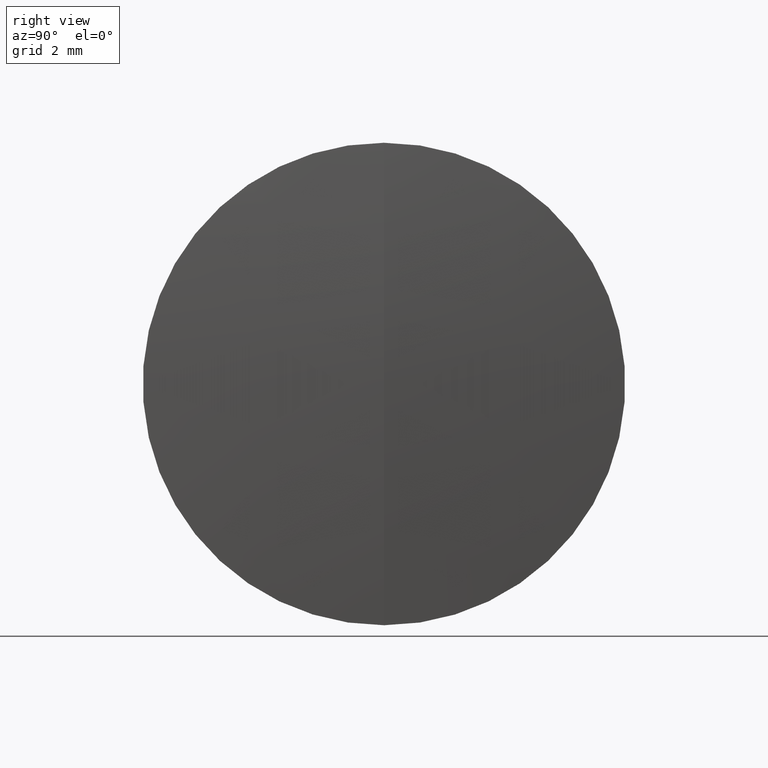
[diagram: clean part render]
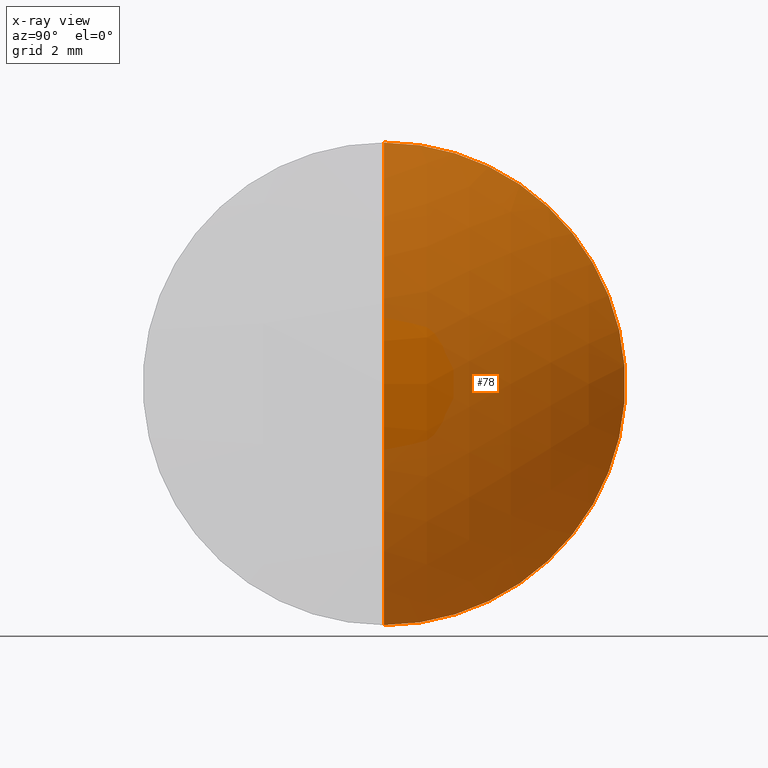
[diagram: x-ray — body ghosted, one internal face saturated and labeled with its STEP entity id]
A machine part, right view, then the same camera in x-ray: the body is ghosted and one INTERNAL B-rep face — a face not visible from any outside direction — is saturated and labeled: STEP entity #78.
In plain terms, the highlighted spherical surface has radius 10.6 mm.
Its self-contained STEP definition (entity closure, byte-faithful):
#7 = VERTEX_POINT ( 'NONE', #32 ) ;
#11 = EDGE_CURVE ( 'NONE', #58, #106, #141, .T. ) ;
#15 = ORIENTED_EDGE ( 'NONE', *, *, #333, .T. ) ;
#23 = DIRECTION ( 'NONE',  ( -1.000000000000000000, -0.0000000000000000000, -0.0000000000000000000 ) ) ;
#26 = SPHERICAL_SURFACE ( 'NONE', #287, 10.60000000000000500 ) ;
#32 = CARTESIAN_POINT ( 'NONE',  ( -0.6346800517470357900, 7.776507174585692200E-016, -6.349999999999999600 ) ) ;
#45 = DIRECTION ( 'NONE',  ( 0.0000000000000000000, 0.0000000000000000000, 1.000000000000000000 ) ) ;
#57 = EDGE_LOOP ( 'NONE', ( #337, #15, #268 ) ) ;
#58 = VERTEX_POINT ( 'NONE', #237 ) ;
#60 = CIRCLE ( 'NONE', #90, 6.349999999999999600 ) ;
#61 = CARTESIAN_POINT ( 'NONE',  ( -9.122170847029236600, 0.0000000000000000000, 0.0000000000000000000 ) ) ;
#74 = DIRECTION ( 'NONE',  ( -0.0000000000000000000, 1.000000000000000000, 1.224646799147353200E-016 ) ) ;
#78 = ADVANCED_FACE ( 'NONE', ( #170 ), #26, .T. ) ;
#90 = AXIS2_PLACEMENT_3D ( 'NONE', #295, #23, #45 ) ;
#92 = DIRECTION ( 'NONE',  ( 0.0000000000000000000, -1.000000000000000000, 0.0000000000000000000 ) ) ;
#106 = VERTEX_POINT ( 'NONE', #338 ) ;
#119 = EDGE_CURVE ( 'NONE', #106, #7, #60, .T. ) ;
#141 = CIRCLE ( 'NONE', #323, 10.60000000000000500 ) ;
#162 = AXIS2_PLACEMENT_3D ( 'NONE', #345, #74, #260 ) ;
#163 = CARTESIAN_POINT ( 'NONE',  ( -9.122170847029236600, 0.0000000000000000000, 0.0000000000000000000 ) ) ;
#170 = FACE_OUTER_BOUND ( 'NONE', #57, .T. ) ;
#180 = DIRECTION ( 'NONE',  ( 0.0000000000000000000, 0.0000000000000000000, -1.000000000000000000 ) ) ;
#186 = DIRECTION ( 'NONE',  ( 0.0000000000000000000, 1.000000000000000000, 0.0000000000000000000 ) ) ;
#194 = CIRCLE ( 'NONE', #162, 10.60000000000000500 ) ;
#237 = CARTESIAN_POINT ( 'NONE',  ( 1.477829152970767900, 0.0000000000000000000, 6.490628035480974900E-016 ) ) ;
#240 = DIRECTION ( 'NONE',  ( 0.0000000000000000000, 0.0000000000000000000, 1.000000000000000000 ) ) ;
#260 = DIRECTION ( 'NONE',  ( 0.0000000000000000000, -1.224646799147353200E-016, 1.000000000000000000 ) ) ;
#268 = ORIENTED_EDGE ( 'NONE', *, *, #119, .F. ) ;
#287 = AXIS2_PLACEMENT_3D ( 'NONE', #163, #186, #240 ) ;
#295 = CARTESIAN_POINT ( 'NONE',  ( -0.6346800517470357900, 0.0000000000000000000, 0.0000000000000000000 ) ) ;
#323 = AXIS2_PLACEMENT_3D ( 'NONE', #61, #92, #180 ) ;
#333 = EDGE_CURVE ( 'NONE', #58, #7, #194, .T. ) ;
#337 = ORIENTED_EDGE ( 'NONE', *, *, #11, .F. ) ;
#338 = CARTESIAN_POINT ( 'NONE',  ( -0.6346800517470357900, 0.0000000000000000000, 6.349999999999999600 ) ) ;
#345 = CARTESIAN_POINT ( 'NONE',  ( -9.122170847029236600, 0.0000000000000000000, 0.0000000000000000000 ) ) ;